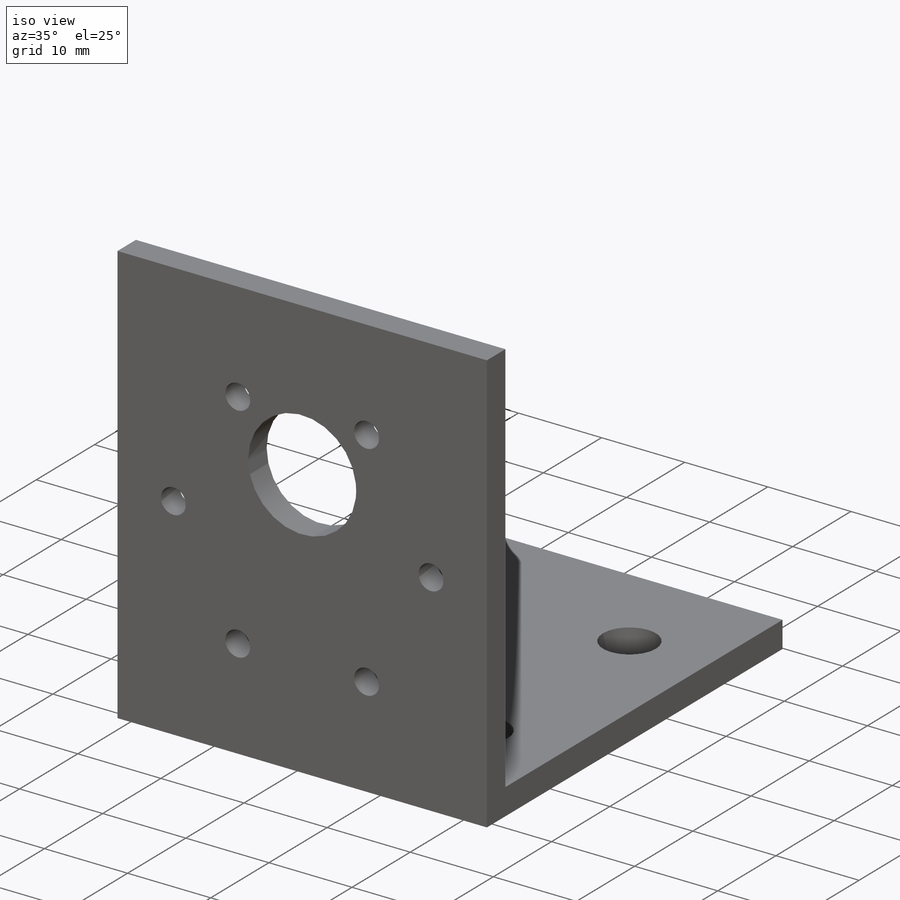
[diagram: iso view]
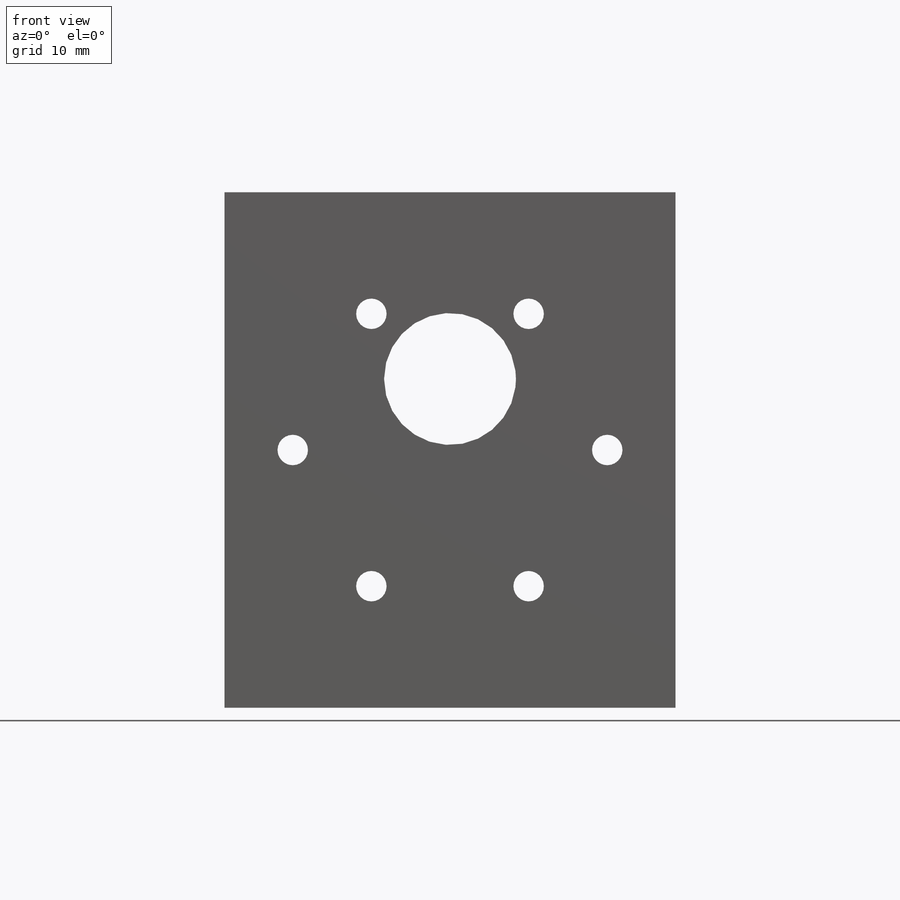
[diagram: front view]
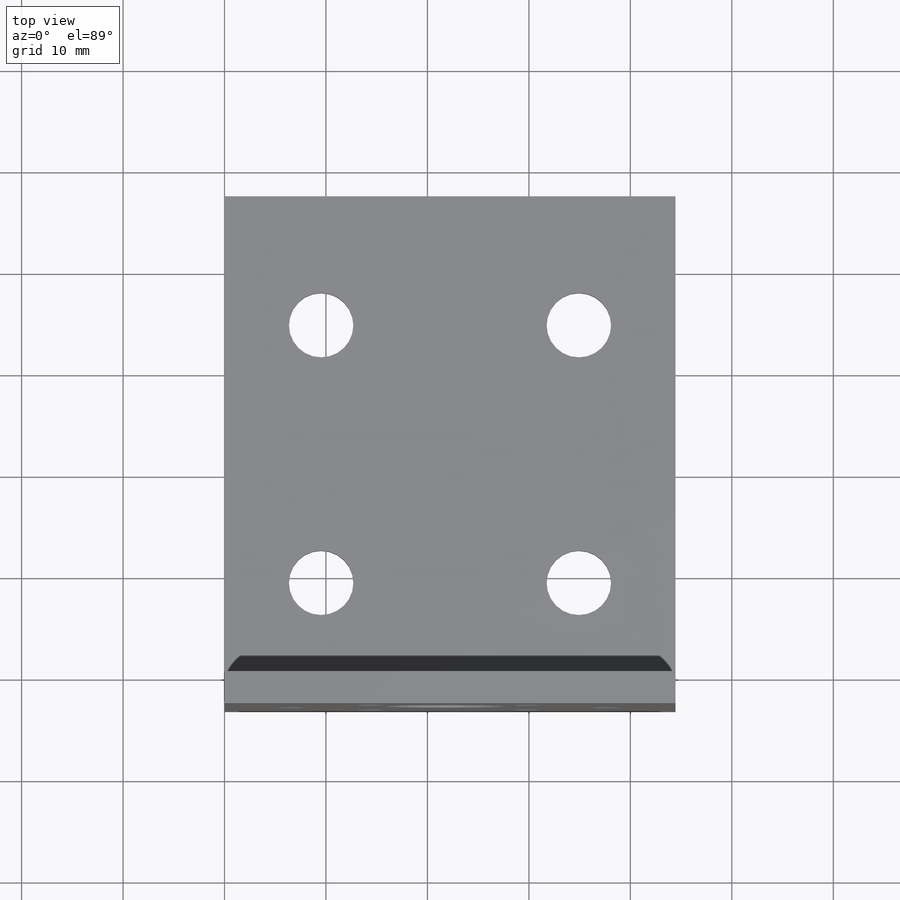
[diagram: top view]
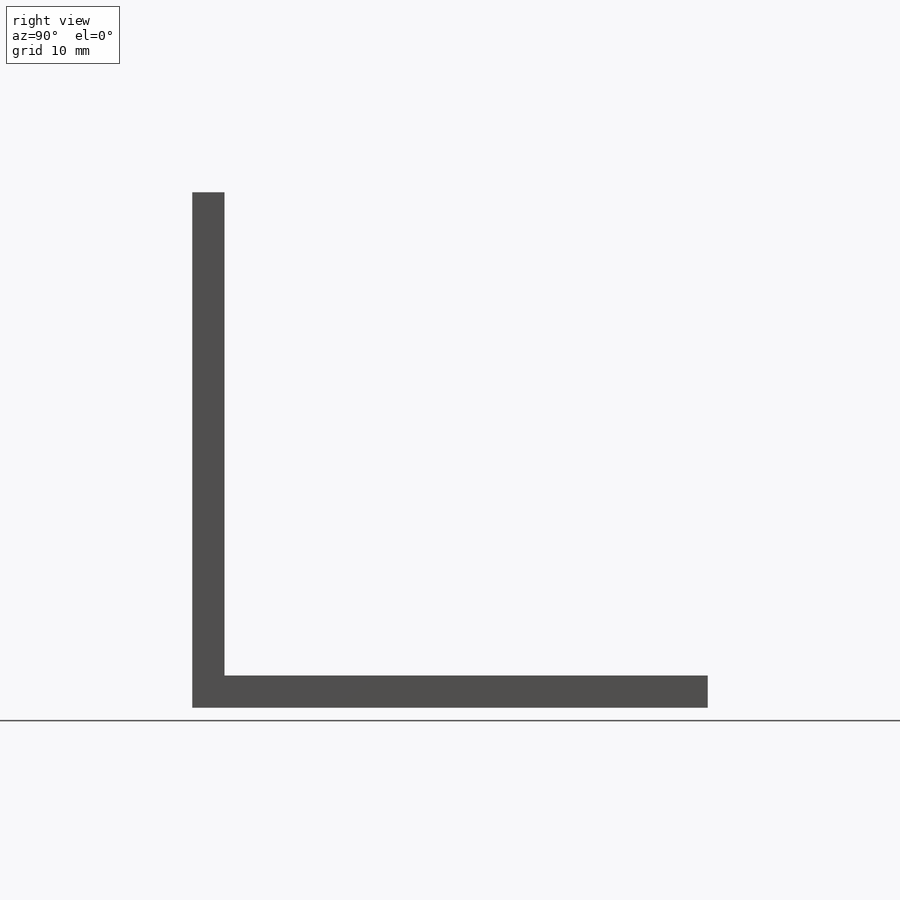
[diagram: right view]
SOLIDWORKS PART (.sldprt)
format: sldprt  version: not decoded by parser v0  size: 198,144 bytes
history: native  units: mm
features: sketch x3, extrude x2, material x1, cut_extrude x1 (+13 scaffold rows collapsed)
feature tree (20):
  scaffold x13  (default folders/planes/origin — collapsed)
  material  "Material <not specified>"
  sketch  "Sketch1"  dims[c1.D3=13.0mm c1.D4=37.0mm c1.D7=3.0mm c1.D10=31.0mm c1.D12=~5.043203mm c1.D15=6.35mm c1.D1=44.45mm c1.D2=50.8mm c1.D5=7.0mm c1.D6=25.4mm c1.D8=76.2mm c2.D8=60.0deg c2.D9=~74.583204mm c3.D9=60.0deg c3.D11=31.2mm c3.D12=9.525mm c3.D13=31.1912mm c3.D14=9.525mm c3.D2=50.8mm c4.D11=12.7mm c4.D12=15.875mm c4.D13=6.35mm c4.D14=6.35mm]
  extrude  "Boss-Extrude1"  Depth=3.175mm
  sketch  "Sketch2"  dims[D1=3.175mm]
  extrude  "Boss-Extrude2"  Depth=47.625mm
  sketch  "Sketch3"  dims[c1.D3=6.35mm c1.D5=6.35mm c1.D1=25.4mm c1.D2=25.4mm c1.D4=9.525mm c2.D5=9.525mm]
  cut_extrude  "Cut-Extrude1"  [1 undecoded]
decode coverage: 5 of 6 modeling features carry decoded parameters
note: ~ marks probable driven/reference dimensions
note: 1 parameter value undecoded
note: suppression state not decoded; provenance and decode notes live in map.json
